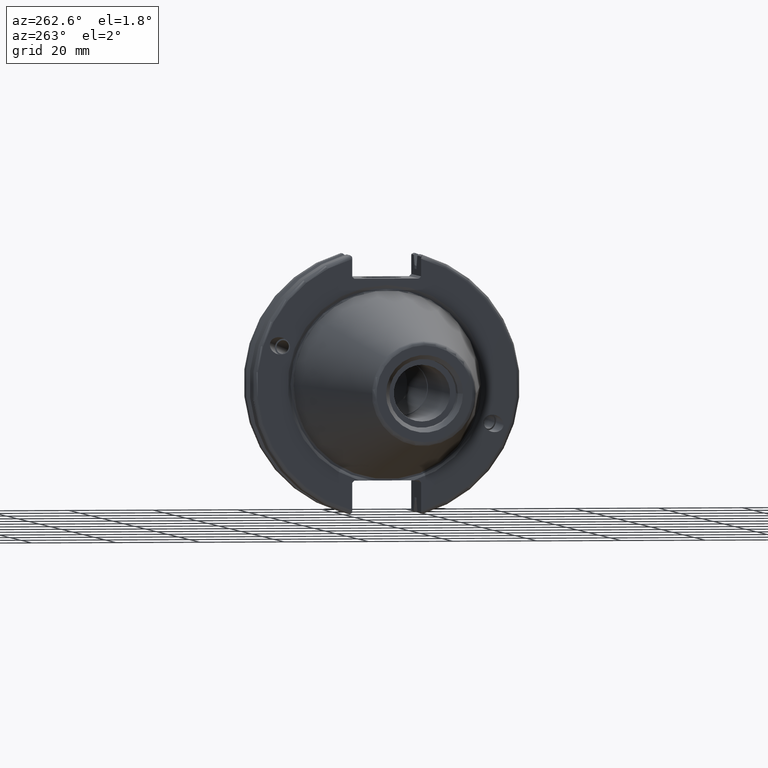
[diagram: clean part render]
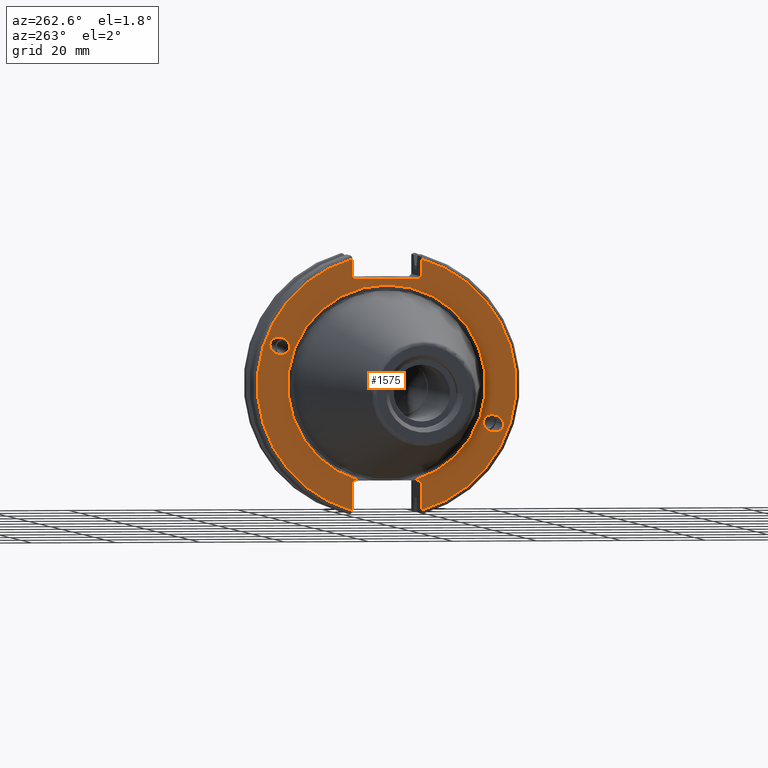
[diagram: same view with one face highlighted and labeled with its STEP entity id]
A machine part, auxiliary view. The second image highlights one B-rep face of the part: STEP entity #1575.
In plain terms, the highlighted planar face has unit normal (-1, 0, 0).
Its self-contained STEP definition (entity closure, byte-faithful):
#44=ELLIPSE('',#1690,2.4415491775229,1.99999999999999);
#53=ELLIPSE('',#1733,2.4415491775229,1.99999999999999);
#121=FACE_BOUND('',#525,.T.);
#122=FACE_BOUND('',#526,.T.);
#143=PLANE('',#1756);
#215=LINE('',#2790,#313);
#218=LINE('',#2840,#316);
#226=LINE('',#2876,#324);
#230=LINE('',#2944,#328);
#231=LINE('',#2946,#329);
#232=LINE('',#2948,#330);
#233=LINE('',#2949,#331);
#234=LINE('',#2951,#332);
#235=LINE('',#2953,#333);
#236=LINE('',#2957,#334);
#237=LINE('',#2958,#335);
#313=VECTOR('',#2085,10.);
#316=VECTOR('',#2094,10.);
#324=VECTOR('',#2104,10.);
#328=VECTOR('',#2130,10.);
#329=VECTOR('',#2131,10.);
#330=VECTOR('',#2132,10.);
#331=VECTOR('',#2133,10.);
#332=VECTOR('',#2134,10.);
#333=VECTOR('',#2135,10.);
#334=VECTOR('',#2138,10.);
#335=VECTOR('',#2139,10.);
#427=FACE_OUTER_BOUND('',#524,.T.);
#524=EDGE_LOOP('',(#1335,#1336,#1337,#1338,#1339,#1340,#1341,#1342,#1343,
#1344,#1345,#1346,#1347,#1348));
#525=EDGE_LOOP('',(#1349));
#526=EDGE_LOOP('',(#1350));
#614=CIRCLE('',#1748,30.75);
#617=CIRCLE('',#1755,30.75);
#618=CIRCLE('',#1757,23.5);
#695=VERTEX_POINT('',#2550);
#735=VERTEX_POINT('',#2733);
#744=VERTEX_POINT('',#2787);
#745=VERTEX_POINT('',#2789);
#751=VERTEX_POINT('',#2837);
#752=VERTEX_POINT('',#2839);
#760=VERTEX_POINT('',#2868);
#761=VERTEX_POINT('',#2875);
#769=VERTEX_POINT('',#2934);
#770=VERTEX_POINT('',#2943);
#771=VERTEX_POINT('',#2945);
#772=VERTEX_POINT('',#2947);
#773=VERTEX_POINT('',#2950);
#774=VERTEX_POINT('',#2952);
#775=VERTEX_POINT('',#2954);
#776=VERTEX_POINT('',#2956);
#870=EDGE_CURVE('',#695,#695,#44,.T.);
#926=EDGE_CURVE('',#735,#735,#53,.T.);
#940=EDGE_CURVE('',#745,#744,#215,.T.);
#950=EDGE_CURVE('',#752,#751,#218,.T.);
#962=EDGE_CURVE('',#761,#760,#226,.T.);
#967=EDGE_CURVE('',#752,#760,#614,.T.);
#976=EDGE_CURVE('',#745,#769,#617,.T.);
#978=EDGE_CURVE('',#770,#751,#230,.T.);
#979=EDGE_CURVE('',#770,#771,#231,.T.);
#980=EDGE_CURVE('',#772,#771,#232,.T.);
#981=EDGE_CURVE('',#772,#769,#233,.T.);
#982=EDGE_CURVE('',#773,#744,#234,.T.);
#983=EDGE_CURVE('',#773,#774,#235,.T.);
#984=EDGE_CURVE('',#774,#775,#618,.T.);
#985=EDGE_CURVE('',#775,#776,#236,.T.);
#986=EDGE_CURVE('',#761,#776,#237,.T.);
#1335=ORIENTED_EDGE('',*,*,#967,.F.);
#1336=ORIENTED_EDGE('',*,*,#950,.T.);
#1337=ORIENTED_EDGE('',*,*,#978,.F.);
#1338=ORIENTED_EDGE('',*,*,#979,.T.);
#1339=ORIENTED_EDGE('',*,*,#980,.F.);
#1340=ORIENTED_EDGE('',*,*,#981,.T.);
#1341=ORIENTED_EDGE('',*,*,#976,.F.);
#1342=ORIENTED_EDGE('',*,*,#940,.T.);
#1343=ORIENTED_EDGE('',*,*,#982,.F.);
#1344=ORIENTED_EDGE('',*,*,#983,.T.);
#1345=ORIENTED_EDGE('',*,*,#984,.T.);
#1346=ORIENTED_EDGE('',*,*,#985,.T.);
#1347=ORIENTED_EDGE('',*,*,#986,.F.);
#1348=ORIENTED_EDGE('',*,*,#962,.T.);
#1349=ORIENTED_EDGE('',*,*,#870,.T.);
#1350=ORIENTED_EDGE('',*,*,#926,.T.);
#1575=ADVANCED_FACE('',(#427,#121,#122),#143,.T.);
#1690=AXIS2_PLACEMENT_3D('',#2552,#1959,#1960);
#1733=AXIS2_PLACEMENT_3D('',#2735,#2062,#2063);
#1748=AXIS2_PLACEMENT_3D('',#2898,#2110,#2111);
#1755=AXIS2_PLACEMENT_3D('',#2935,#2126,#2127);
#1756=AXIS2_PLACEMENT_3D('',#2942,#2128,#2129);
#1757=AXIS2_PLACEMENT_3D('',#2955,#2136,#2137);
#1959=DIRECTION('center_axis',(1.,0.,0.));
#1960=DIRECTION('ref_axis',(0.,-0.939692620785908,-0.342020143325669));
#2062=DIRECTION('center_axis',(1.,0.,0.));
#2063=DIRECTION('ref_axis',(0.,0.939692620785908,0.342020143325669));
#2085=DIRECTION('',(0.,0.,1.));
#2094=DIRECTION('',(0.,0.,-1.));
#2104=DIRECTION('',(0.,0.,-1.));
#2110=DIRECTION('center_axis',(1.,0.,0.));
#2111=DIRECTION('ref_axis',(0.,-1.,1.60812264967664E-16));
#2126=DIRECTION('center_axis',(1.,0.,0.));
#2127=DIRECTION('ref_axis',(0.,1.,1.60812264967664E-16));
#2128=DIRECTION('center_axis',(-1.,0.,0.));
#2129=DIRECTION('ref_axis',(0.,0.,1.));
#2130=DIRECTION('',(0.,-0.70710678118655,0.707106781186545));
#2131=DIRECTION('',(0.,1.,0.));
#2132=DIRECTION('',(0.,-0.707106781186549,-0.707106781186546));
#2133=DIRECTION('',(0.,0.,1.));
#2134=DIRECTION('',(0.,0.707106781186549,-0.707106781186546));
#2135=DIRECTION('',(0.,-1.,0.));
#2136=DIRECTION('center_axis',(1.,0.,0.));
#2137=DIRECTION('ref_axis',(0.,0.,-1.));
#2138=DIRECTION('',(0.,-1.,0.));
#2139=DIRECTION('',(0.,0.707106781186549,0.707106781186546));
#2550=CARTESIAN_POINT('',(1.,-23.0773950158154,-8.39948487016));
#2552=CARTESIAN_POINT('Origin',(1.,-25.3717007612195,-9.23454386979305));
#2733=CARTESIAN_POINT('',(1.,23.0773950158154,8.39948487016001));
#2735=CARTESIAN_POINT('Origin',(1.,25.3717007612195,9.23454386979306));
#2787=CARTESIAN_POINT('',(1.,8.18999999999999,-23.1));
#2789=CARTESIAN_POINT('',(1.,8.18999999999999,-29.6392712461019));
#2790=CARTESIAN_POINT('',(1.,8.18999999999999,-11.3));
#2837=CARTESIAN_POINT('',(1.,-8.18999999999999,25.5));
#2839=CARTESIAN_POINT('',(1.,-8.18999999999999,29.6392712461019));
#2840=CARTESIAN_POINT('',(1.,-8.18999999999999,12.5));
#2868=CARTESIAN_POINT('',(1.,-8.19,-29.6392712461019));
#2875=CARTESIAN_POINT('',(1.,-8.19,-23.1));
#2876=CARTESIAN_POINT('',(1.,-8.19,-11.3));
#2898=CARTESIAN_POINT('Origin',(1.,0.,0.));
#2934=CARTESIAN_POINT('',(1.,8.19,29.6392712461019));
#2935=CARTESIAN_POINT('Origin',(1.,0.,0.));
#2942=CARTESIAN_POINT('Origin',(1.,31.75,0.));
#2943=CARTESIAN_POINT('',(1.,-7.68999999999999,25.));
#2944=CARTESIAN_POINT('',(1.,8.29500000000007,9.01500000000004));
#2945=CARTESIAN_POINT('',(1.,7.69,25.));
#2946=CARTESIAN_POINT('',(1.,15.875,25.));
#2947=CARTESIAN_POINT('',(1.,8.19,25.5));
#2948=CARTESIAN_POINT('',(1.,7.58000000000002,24.89));
#2949=CARTESIAN_POINT('',(1.,8.19,12.5));
#2950=CARTESIAN_POINT('',(1.,7.69,-22.6));
#2951=CARTESIAN_POINT('',(0.999999999999999,8.18000000000002,-23.09));
#2952=CARTESIAN_POINT('',(0.999999999999997,6.4412731660752,-22.6));
#2953=CARTESIAN_POINT('',(1.,15.875,-22.6));
#2954=CARTESIAN_POINT('',(1.,-6.44127316607517,-22.6));
#2955=CARTESIAN_POINT('Origin',(0.999999999999996,0.,0.));
#2956=CARTESIAN_POINT('',(1.,-7.69,-22.6));
#2957=CARTESIAN_POINT('',(1.,15.875,-22.6));
#2958=CARTESIAN_POINT('',(1.,7.69500000000004,-7.21500000000002));